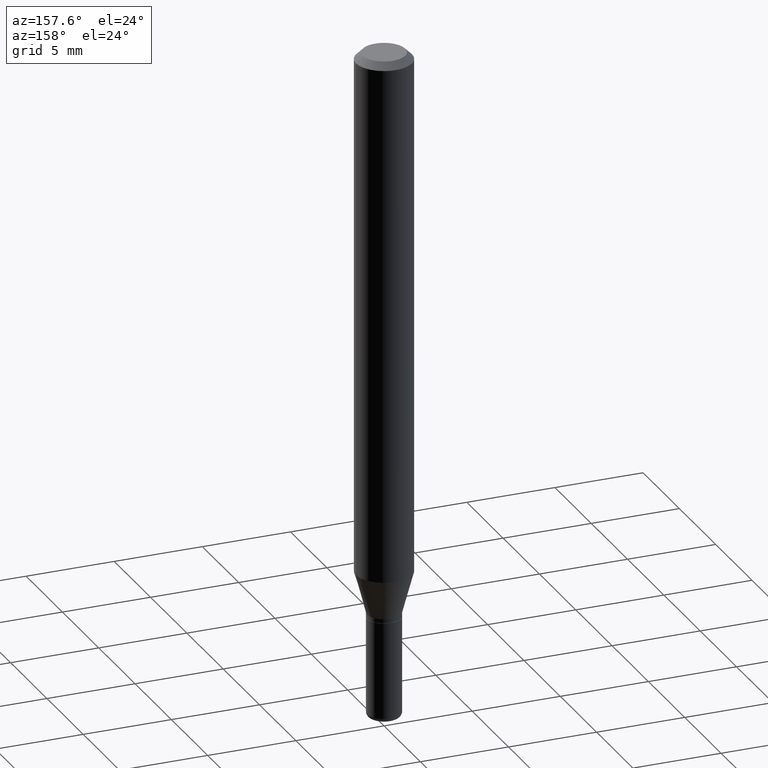
[diagram: clean part render]
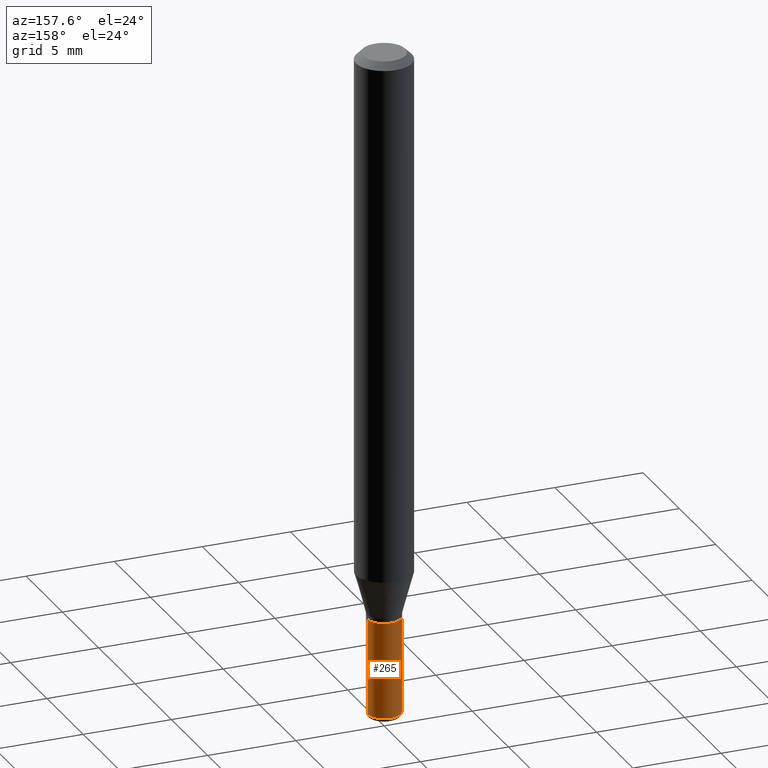
[diagram: same view with one face highlighted and labeled with its STEP entity id]
A machine part, auxiliary view. The second image highlights one B-rep face of the part: STEP entity #265.
In plain terms, the highlighted cylindrical surface (edge-blend (fillet) strip) has radius 0.9525 mm, axis along (-0, 0, 1).
Its self-contained STEP definition (entity closure, byte-faithful):
#8 = CARTESIAN_POINT ( 'NONE',  ( 0.03749999999999999861, -4.713499807438246596E-15, -1.275000000000000133 ) ) ;
#18 = DIRECTION ( 'NONE',  ( -2.445468806185136877E-29, 3.491481338843145188E-15, 1.000000000000000000 ) ) ;
#47 = CARTESIAN_POINT ( 'NONE',  ( 0.000000000000000000, 0.000000000000000000, 0.000000000000000000 ) ) ;
#73 = ORIENTED_EDGE ( 'NONE', *, *, #248, .T. ) ;
#77 = EDGE_LOOP ( 'NONE', ( #250, #73, #329, #136 ) ) ;
#82 = CARTESIAN_POINT ( 'NONE',  ( 3.117972727886049049E-29, -4.451638707025011594E-15, -1.275000000000000133 ) ) ;
#92 = EDGE_CURVE ( 'NONE', #486, #402, #342, .T. ) ;
#98 = CARTESIAN_POINT ( 'NONE',  ( 0.03749999999999994310, -5.464168295289523107E-15, -1.490000000000000213 ) ) ;
#112 = VERTEX_POINT ( 'NONE', #417 ) ;
#125 = CARTESIAN_POINT ( 'NONE',  ( -0.03749999999999997086, 2.664535259100373626E-16, -1.844600658845588407E-30 ) ) ;
#136 = ORIENTED_EDGE ( 'NONE', *, *, #92, .F. ) ;
#151 = VECTOR ( 'NONE', #281, 39.37007874015748143 ) ;
#154 = DIRECTION ( 'NONE',  ( 1.000000000000000000, -6.982962677686266711E-15, 4.876176775795935793E-29 ) ) ;
#175 = DIRECTION ( 'NONE',  ( 1.000000000000000000, -6.982962677686278543E-15, 0.000000000000000000 ) ) ;
#179 = CARTESIAN_POINT ( 'NONE',  ( 3.643748521215853910E-29, -5.202307194876288105E-15, -1.490000000000000213 ) ) ;
#222 = CARTESIAN_POINT ( 'NONE',  ( -0.03749999999999994310, -4.560519425040611649E-15, -1.490000000000000213 ) ) ;
#223 = CIRCLE ( 'NONE', #325, 0.03749999999999994310 ) ;
#248 = EDGE_CURVE ( 'NONE', #390, #112, #318, .T. ) ;
#250 = ORIENTED_EDGE ( 'NONE', *, *, #423, .T. ) ;
#254 = AXIS2_PLACEMENT_3D ( 'NONE', #47, #401, #154 ) ;
#264 = AXIS2_PLACEMENT_3D ( 'NONE', #82, #442, #433 ) ;
#265 = ADVANCED_FACE ( 'NONE', ( #311 ), #322, .T. ) ;
#281 = DIRECTION ( 'NONE',  ( -2.445468806185136877E-29, 3.491481338843145188E-15, 1.000000000000000000 ) ) ;
#290 = EDGE_CURVE ( 'NONE', #402, #112, #317, .T. ) ;
#311 = FACE_OUTER_BOUND ( 'NONE', #77, .T. ) ;
#317 = CIRCLE ( 'NONE', #264, 0.03749999999999999861 ) ;
#318 = LINE ( 'NONE', #125, #151 ) ;
#322 = CYLINDRICAL_SURFACE ( 'NONE', #254, 0.03749999999999997086 ) ;
#325 = AXIS2_PLACEMENT_3D ( 'NONE', #179, #450, #175 ) ;
#329 = ORIENTED_EDGE ( 'NONE', *, *, #290, .F. ) ;
#342 = LINE ( 'NONE', #412, #488 ) ;
#390 = VERTEX_POINT ( 'NONE', #222 ) ;
#401 = DIRECTION ( 'NONE',  ( -2.445468806185136597E-29, 3.491481338843145583E-15, 1.000000000000000000 ) ) ;
#402 = VERTEX_POINT ( 'NONE', #8 ) ;
#412 = CARTESIAN_POINT ( 'NONE',  ( 0.03749999999999997086, -2.618611004132348044E-16, 1.828566290923474521E-30 ) ) ;
#417 = CARTESIAN_POINT ( 'NONE',  ( -0.03749999999999999861, -4.560519425040611649E-15, -1.275000000000000133 ) ) ;
#423 = EDGE_CURVE ( 'NONE', #486, #390, #223, .T. ) ;
#433 = DIRECTION ( 'NONE',  ( 1.000000000000000000, -6.982962677686268288E-15, 0.000000000000000000 ) ) ;
#442 = DIRECTION ( 'NONE',  ( -2.445468806185136597E-29, 3.491481338843145583E-15, 1.000000000000000000 ) ) ;
#450 = DIRECTION ( 'NONE',  ( -2.445468806185136597E-29, 3.491481338843145583E-15, 1.000000000000000000 ) ) ;
#486 = VERTEX_POINT ( 'NONE', #98 ) ;
#488 = VECTOR ( 'NONE', #18, 39.37007874015748143 ) ;